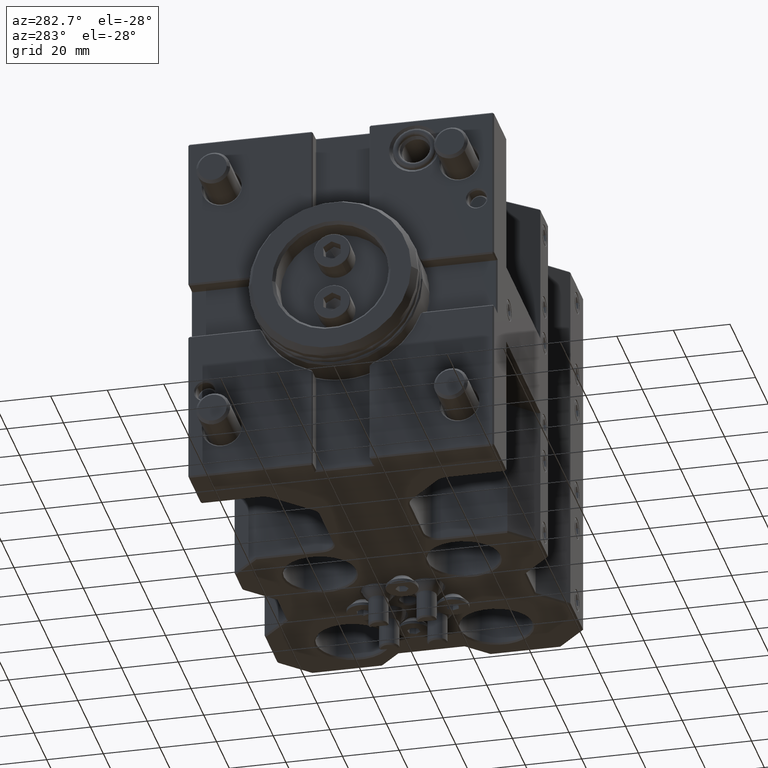
[diagram: clean part render]
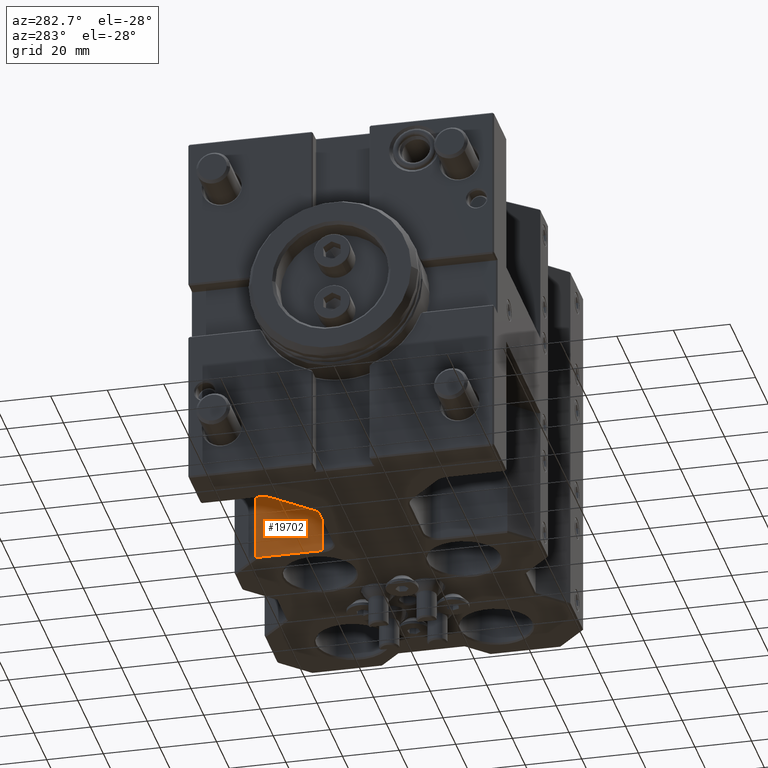
[diagram: same view with one face highlighted and labeled with its STEP entity id]
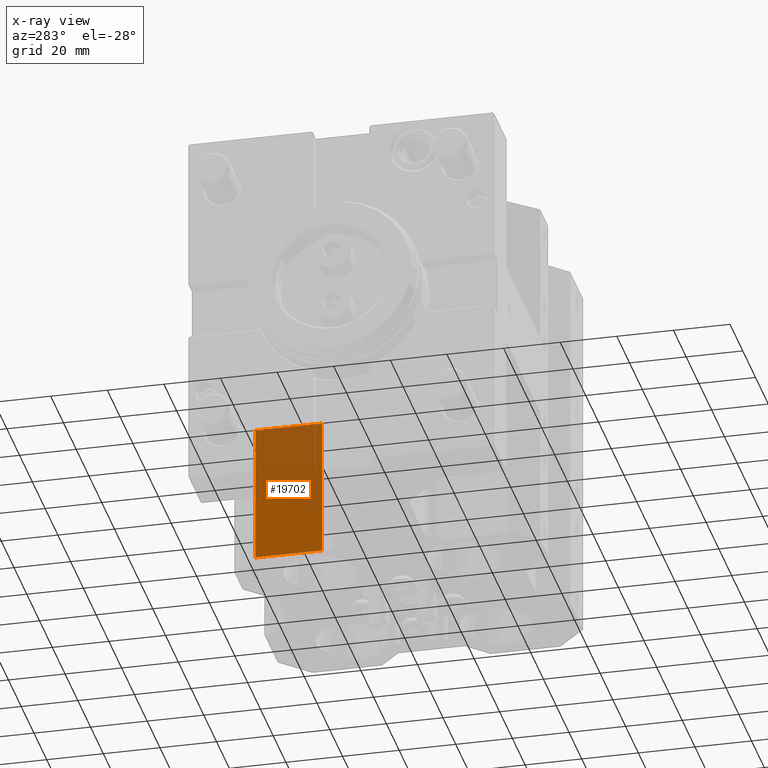
[diagram: x-ray of the same camera — body ghosted, the highlighted face saturated]
A machine part, auxiliary view. The second image highlights one B-rep face of the part: STEP entity #19702.
The next image is the same camera in x-ray: the body ghosted, the highlighted face saturated — about 60% of this face is hidden behind the body in this view.
In plain terms, the highlighted planar face has unit normal (1, -0, 0).
Its self-contained STEP definition (entity closure, byte-faithful):
#454 = CARTESIAN_POINT ( 'NONE',  ( 63.50000000000015632, 44.49999999999877787, -15.00000000000000000 ) ) ;
#3583 = EDGE_CURVE ( 'NONE', #33438, #5499, #33456, .T. ) ;
#3618 = FACE_OUTER_BOUND ( 'NONE', #21153, .T. ) ;
#5468 = VECTOR ( 'NONE', #41663, 1000.000000000000000 ) ;
#5499 = VERTEX_POINT ( 'NONE', #16175 ) ;
#7541 = VECTOR ( 'NONE', #22853, 1000.000000000000000 ) ;
#9381 = ORIENTED_EDGE ( 'NONE', *, *, #42214, .T. ) ;
#12448 = VECTOR ( 'NONE', #29352, 1000.000000000000000 ) ;
#13658 = CARTESIAN_POINT ( 'NONE',  ( 63.50000000000015632, 44.49999999999877787, -15.00000000000000000 ) ) ;
#15185 = DIRECTION ( 'NONE',  ( -3.491481338843133355E-15, -1.000000000000000000, 0.000000000000000000 ) ) ;
#15845 = LINE ( 'NONE', #30330, #7541 ) ;
#15947 = VECTOR ( 'NONE', #23785, 1000.000000000000000 ) ;
#16175 = CARTESIAN_POINT ( 'NONE',  ( 63.50000000000015632, 44.49999999999877787, -64.49999999999995737 ) ) ;
#18340 = PLANE ( 'NONE',  #46670 ) ;
#19702 = ADVANCED_FACE ( 'NONE', ( #3618 ), #18340, .F. ) ;
#19773 = DIRECTION ( 'NONE',  ( 1.000000000000000000, -3.491481338843133355E-15, 0.000000000000000000 ) ) ;
#20204 = ORIENTED_EDGE ( 'NONE', *, *, #3583, .T. ) ;
#21153 = EDGE_LOOP ( 'NONE', ( #20204, #9381, #22866, #43727 ) ) ;
#21765 = EDGE_CURVE ( 'NONE', #33438, #26325, #31983, .T. ) ;
#22853 = DIRECTION ( 'NONE',  ( -3.491481338843133355E-15, -1.000000000000000000, 0.000000000000000000 ) ) ;
#22866 = ORIENTED_EDGE ( 'NONE', *, *, #31409, .F. ) ;
#23135 = CARTESIAN_POINT ( 'NONE',  ( 63.50000000000015632, 44.49999999999877787, -15.00000000000000000 ) ) ;
#23785 = DIRECTION ( 'NONE',  ( -3.491481338843133355E-15, -1.000000000000000000, 0.000000000000000000 ) ) ;
#26325 = VERTEX_POINT ( 'NONE', #28351 ) ;
#28351 = CARTESIAN_POINT ( 'NONE',  ( 63.50000000000007105, 20.99999999999878142, -15.00000000000000000 ) ) ;
#29352 = DIRECTION ( 'NONE',  ( 0.000000000000000000, -0.000000000000000000, -1.000000000000000000 ) ) ;
#29592 = CARTESIAN_POINT ( 'NONE',  ( 63.50000000000015632, 44.49999999999877787, -15.00000000000000000 ) ) ;
#30330 = CARTESIAN_POINT ( 'NONE',  ( 63.50000000000015632, 44.49999999999877787, -64.49999999999997158 ) ) ;
#31409 = EDGE_CURVE ( 'NONE', #26325, #47140, #45518, .T. ) ;
#31983 = LINE ( 'NONE', #13658, #15947 ) ;
#33438 = VERTEX_POINT ( 'NONE', #23135 ) ;
#33456 = LINE ( 'NONE', #29592, #12448 ) ;
#39038 = CARTESIAN_POINT ( 'NONE',  ( 63.50000000000007105, 20.99999999999878142, -64.49999999999997158 ) ) ;
#41663 = DIRECTION ( 'NONE',  ( 0.000000000000000000, -0.000000000000000000, -1.000000000000000000 ) ) ;
#42214 = EDGE_CURVE ( 'NONE', #5499, #47140, #15845, .T. ) ;
#43727 = ORIENTED_EDGE ( 'NONE', *, *, #21765, .F. ) ;
#45275 = CARTESIAN_POINT ( 'NONE',  ( 63.50000000000007105, 20.99999999999878142, -15.00000000000000000 ) ) ;
#45518 = LINE ( 'NONE', #45275, #5468 ) ;
#46670 = AXIS2_PLACEMENT_3D ( 'NONE', #454, #19773, #15185 ) ;
#47140 = VERTEX_POINT ( 'NONE', #39038 ) ;